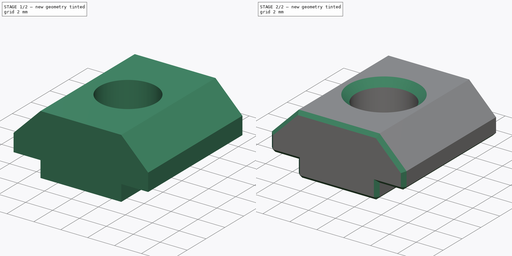
[diagram: build sequence overview — one tinted view per stage of 2, left to right]
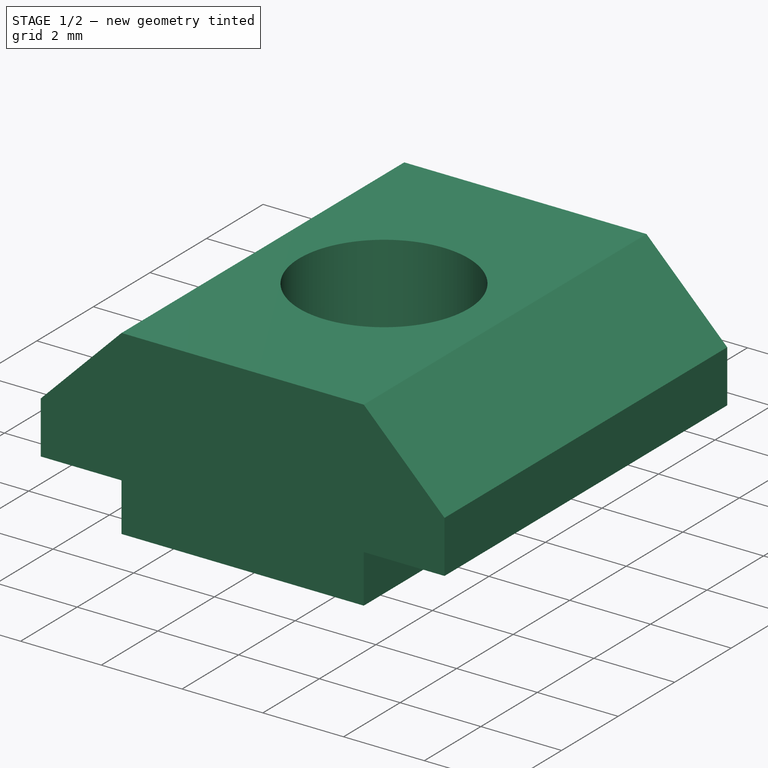
[diagram: stage 1 of 2 — iso view after this stage's code; geometry added in this stage tinted green]
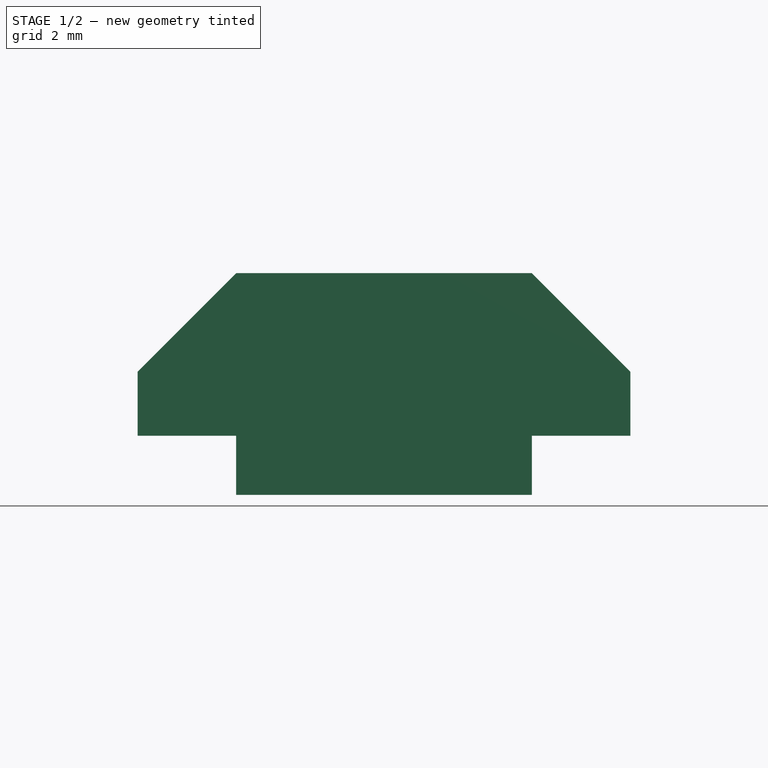
[diagram: stage 1 of 2 — front view after this stage's code; geometry added in this stage tinted green]
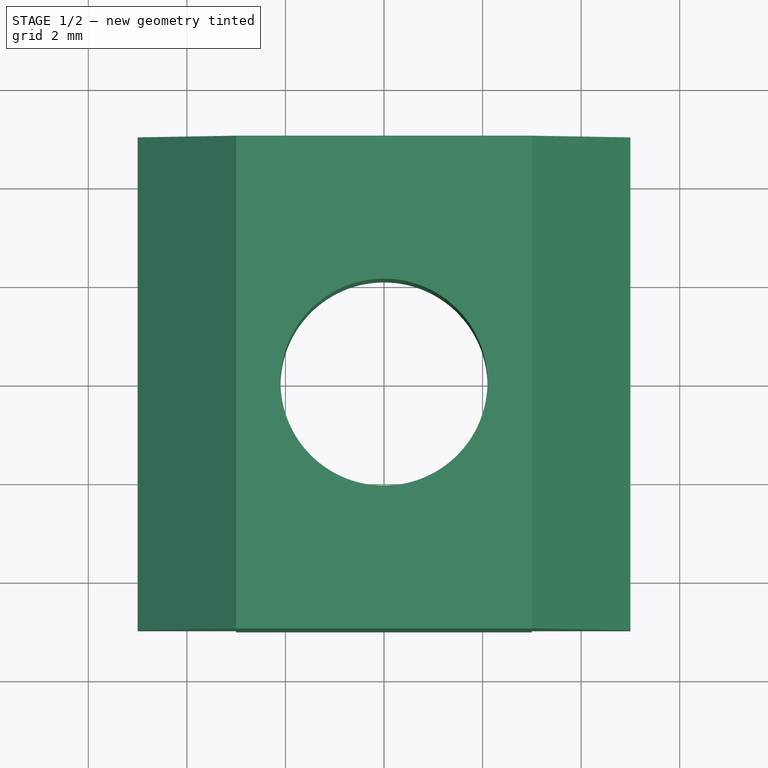
[diagram: stage 1 of 2 — top view after this stage's code; geometry added in this stage tinted green]
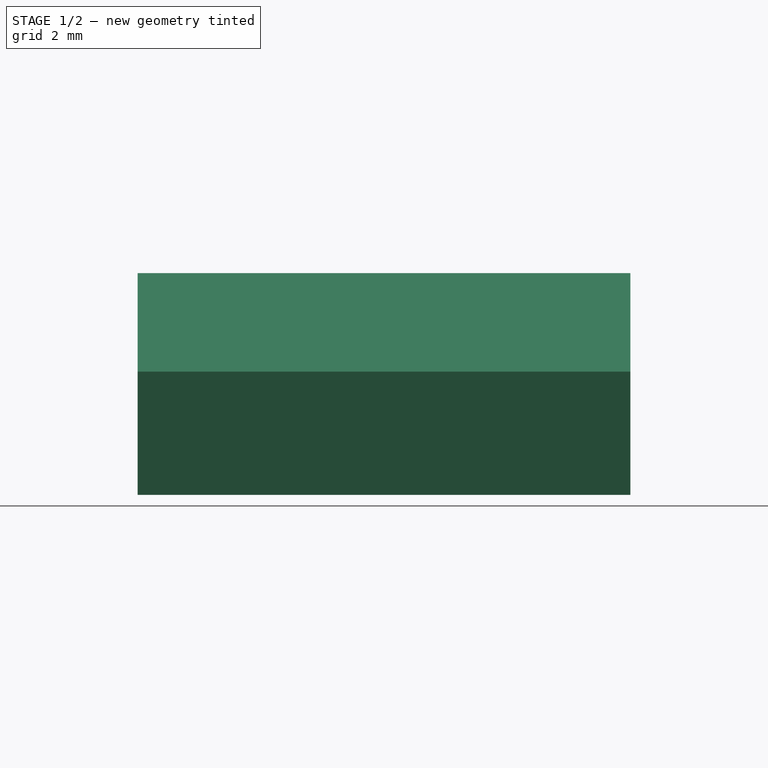
[diagram: stage 1 of 2 — right view after this stage's code; geometry added in this stage tinted green]
FCSTD DOCUMENT  (FreeCAD 0.21R33668 +7 (Git))
Label: M5 Block T-Nut
License: All rights reserved
LicenseURL: http://en.wikipedia.org/wiki/All_rights_reserved
objects: Sketcher::SketchObject×2, PartDesign::Chamfer×2, PartDesign::Pad×1, PartDesign::Hole×1, PartDesign::Body×1
note: 11 computed .brp shape members not serialized (recipe doc carries the construction recipe); baked Part::Feature solids carry a one-line shape summary decoded from their .brp

FEATURE [Sketcher::SketchObject] Sketch002
  FullyConstrained = true
  MapMode = 5
  Placement = pos=(0,0,0) rot=(1,0,0;1.5708rad)
  Support = -> [XZ_Plane003]
  sketch-geometry (10):
    g0: LineSegment StartX=-3 StartY=3.3 StartZ=0 EndX=3 EndY=3.3 EndZ=0
    g1: LineSegment StartX=3 StartY=3.3 StartZ=0 EndX=5 EndY=1.3 EndZ=0
    g2: LineSegment StartX=5 StartY=1.3 StartZ=0 EndX=5 EndY=0 EndZ=0
    g3: LineSegment StartX=5 StartY=0 StartZ=0 EndX=3 EndY=0 EndZ=0
    g4: LineSegment StartX=3 StartY=0 StartZ=0 EndX=3 EndY=-1.2 EndZ=0
    g5: LineSegment StartX=3 StartY=-1.2 StartZ=0 EndX=-3 EndY=-1.2 EndZ=0
    g6: LineSegment StartX=-3 StartY=-1.2 StartZ=0 EndX=-3 EndY=0 EndZ=0
    g7: LineSegment StartX=-3 StartY=0 StartZ=0 EndX=-5 EndY=0 EndZ=0
    g8: LineSegment StartX=-5 StartY=0 StartZ=0 EndX=-5 EndY=1.3 EndZ=0
    g9: LineSegment StartX=-5 StartY=1.3 StartZ=0 EndX=-3 EndY=3.3 EndZ=0
  constraints (29):
    c: Coincident(g0,g1)
    c: Coincident(g1,g2)
    c: Vertical(g2)
    c: Coincident(g2,g3)
    c: PointOnObject(g3,g-1)
    c: Horizontal(g3)
    c: Coincident(g3,g4)
    c: Vertical(g4)
    c: Coincident(g4,g5)
    c: Horizontal(g5)
    c: Coincident(g5,g6)
    c: PointOnObject(g6,g-1)
    c: Vertical(g6)
    c: Coincident(g6,g7)
    c: PointOnObject(g7,g-1)
    c: Coincident(g7,g8)
    c: Coincident(g8,g9)
    c: Coincident(g9,g0)
    c: Vertical(g8)
    c: Equal(g8,g2)
    c: Equal(g7,g3)
    c: Equal(g1,g9)
    c: Symmetric(g0,g0,g-2)
    c: Perpendicular(g9,g1)
    c: DistanceY(g4,g0) = 4.5
    c: DistanceX(g8,g1) = 10
    c: DistanceX(g5,g5) = 6
    c: DistanceY(g5,g7) = 1.2
    c: DistanceX(g9,g9) = 2
FEATURE [PartDesign::Pad] Pad001
  Direction = (0,-1,2e-16)
  Length = 10
  Length2 = 10
  Midplane = true
  Placement = pos=(0,0,0) rot=(1,0,0;1.5708rad)
  Profile = -> Sketch002
  ReferenceAxis = -> Sketch002 [N_Axis]
  Type = 0
FEATURE [Sketcher::SketchObject] Sketch003
  FullyConstrained = false
  MapMode = 5
  Placement = pos=(0,-8e-16,-1.2) rot=(1,0,0;3.14159rad)
  Support = -> [Pad001]
  sketch-geometry (1):
    g0: Circle CenterX=0 CenterY=0 CenterZ=0 NormalX=0 NormalY=0 NormalZ=1 AngleXU=0 Radius=1.15297
  constraints (1):
    c: Coincident(g0,g-1)
FEATURE [PartDesign::Hole] Hole
  BaseFeature = -> Pad001
  CustomThreadClearance = 0
  Depth = 25
  DepthType = 0
  Diameter = 4.2
  DrillForDepth = false
  DrillPoint = 1
  DrillPointAngle = 118
  HoleCutCountersinkAngle = 90
  HoleCutCustomValues = false
  HoleCutDepth = 0
  HoleCutDiameter = 6.1
  HoleCutType = 0
  ModelThread = false
  Placement = pos=(0,0,0) rot=(1,0,0;1.5708rad)
  Profile = -> Sketch003
  Tapered = false
  TaperedAngle = 90
  ThreadClass = 0
  ThreadDepth = 25
  ThreadDepthType = 0
  ThreadDirection = 0
  ThreadFit = 0
  ThreadSize = 13
  ThreadType = 1
  Threaded = true
  UseCustomThreadClearance = false
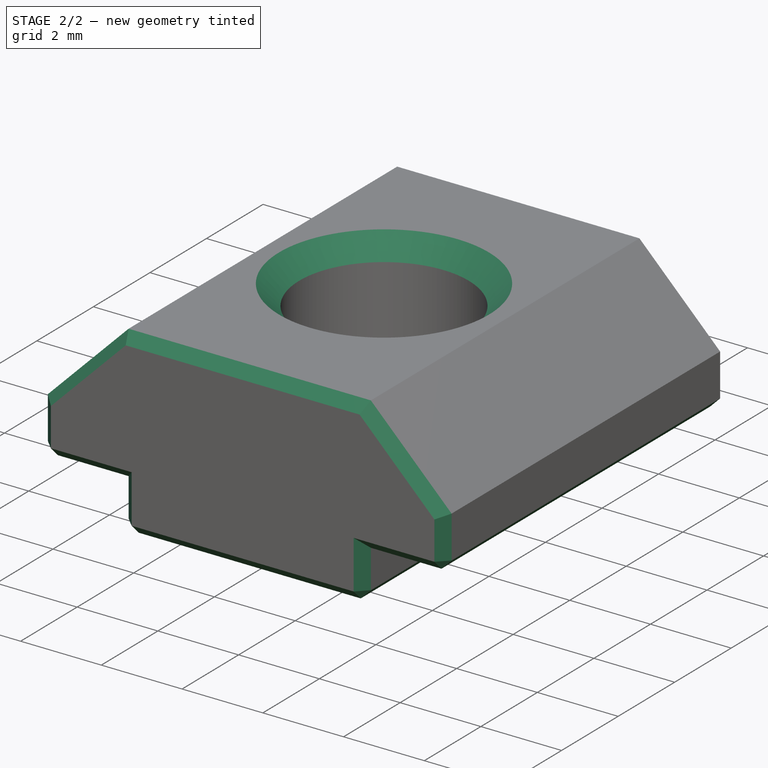
[diagram: stage 2 of 2 — iso view after this stage's code; geometry added in this stage tinted green]
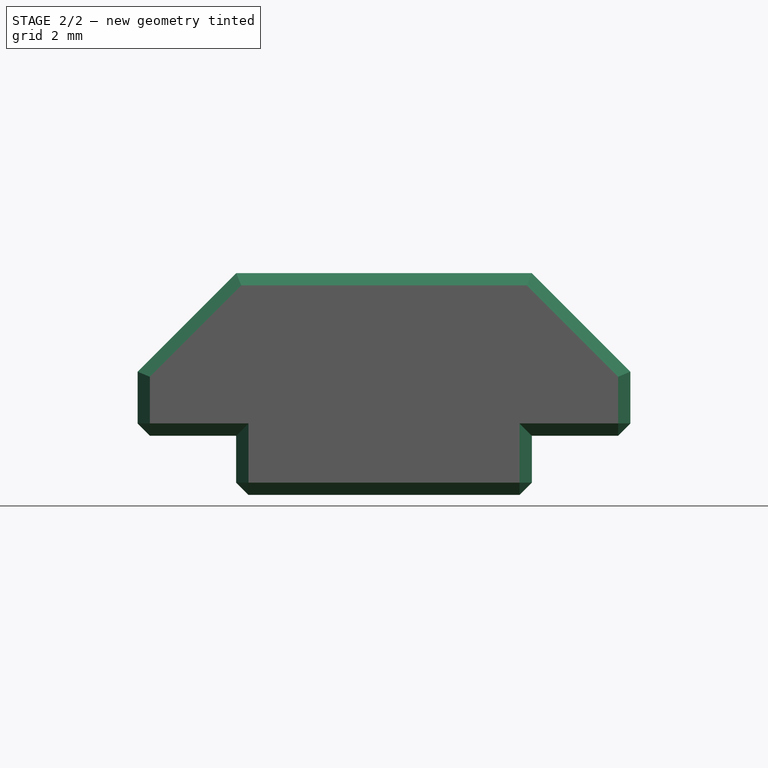
[diagram: stage 2 of 2 — front view after this stage's code; geometry added in this stage tinted green]
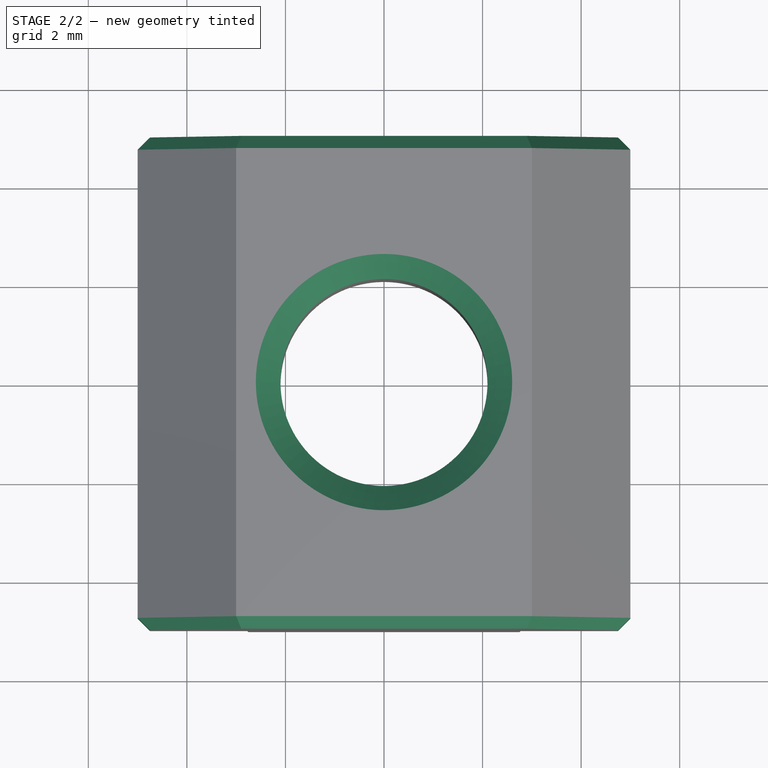
[diagram: stage 2 of 2 — top view after this stage's code; geometry added in this stage tinted green]
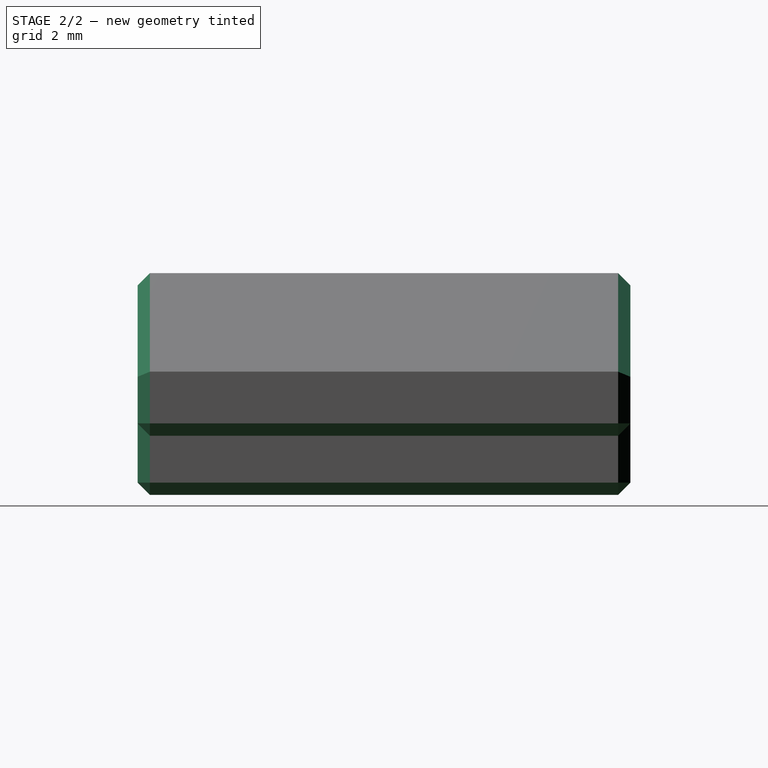
[diagram: stage 2 of 2 — right view after this stage's code; geometry added in this stage tinted green]
FEATURE [PartDesign::Chamfer] Chamfer
  Angle = 45
  Base = -> Hole [Face6]
  BaseFeature = -> Hole
  ChamferType = 0
  FlipDirection = false
  Placement = pos=(0,0,0) rot=(1,0,0;1.5708rad)
  Size = 0.5
  Size2 = 1
  SupportTransform = false
  UseAllEdges = false
FEATURE [PartDesign::Chamfer] Chamfer001
  Angle = 45
  Base = -> Chamfer [Face4,Edge30,Edge31,Face5,Edge35,Edge33]
  BaseFeature = -> Chamfer
  ChamferType = 0
  FlipDirection = false
  Placement = pos=(0,0,0) rot=(1,0,0;1.5708rad)
  Size = 0.25
  Size2 = 1
  SupportTransform = false
  UseAllEdges = false
FEATURE [PartDesign::Body] Body003
  Group = -> [Sketch002,Pad001,Sketch003,Hole,Chamfer,Chamfer001]
  Origin = -> Origin003
  Placement = pos=(0,0,0) rot=(0,1,0;3.14159rad)
  Tip = -> Chamfer001
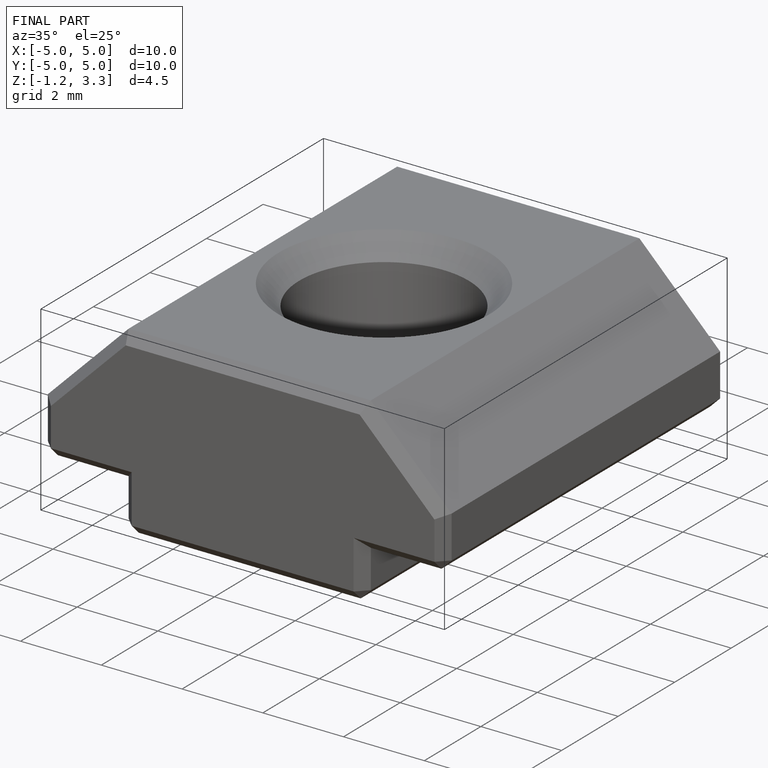
[diagram: finished part — iso view with bounding-box wireframe]
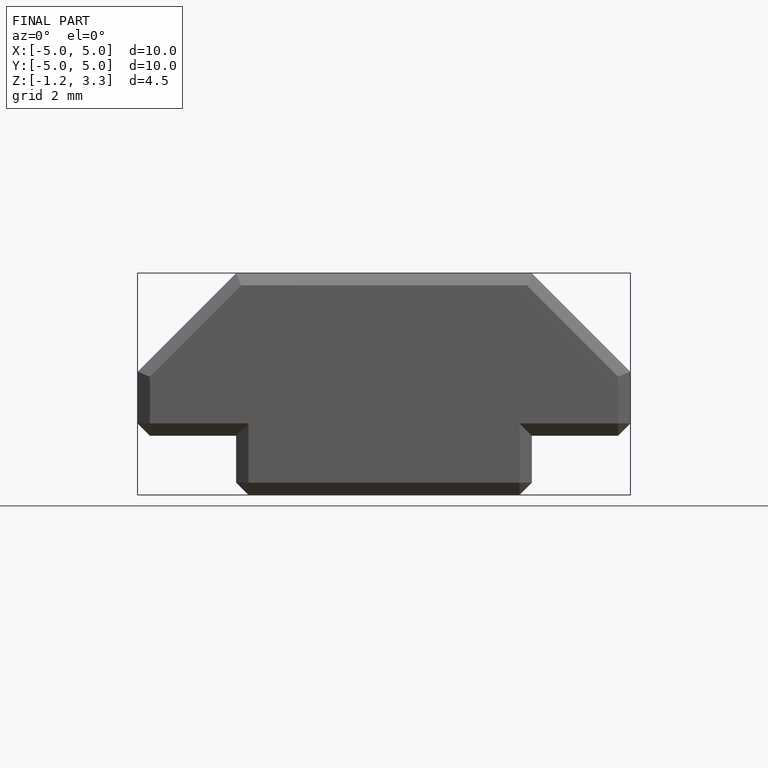
[diagram: finished part — front view with bounding-box wireframe]
